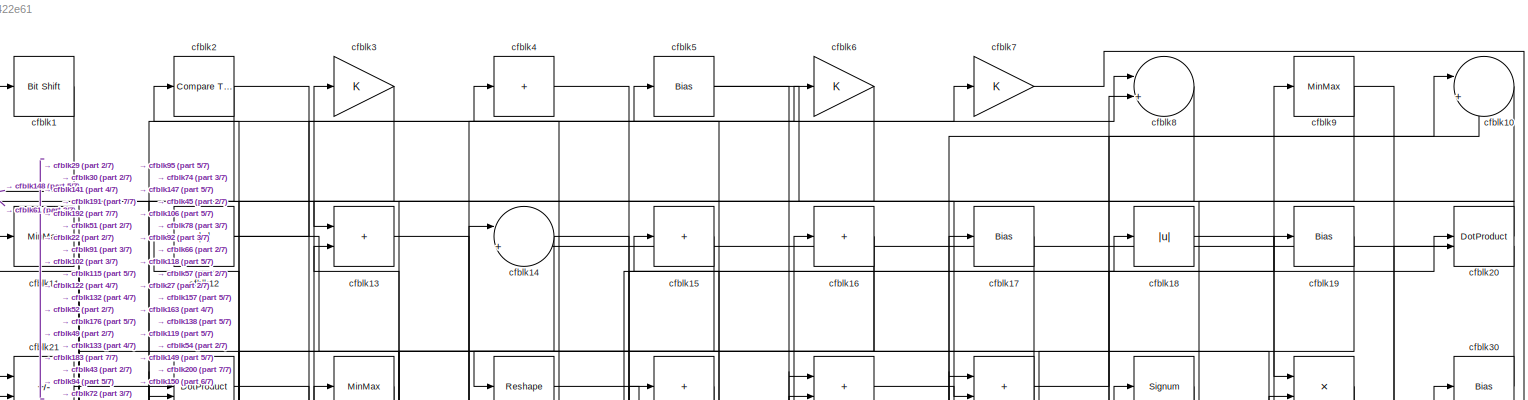
[diagram: root canvas - part 1/7, full width, top band]
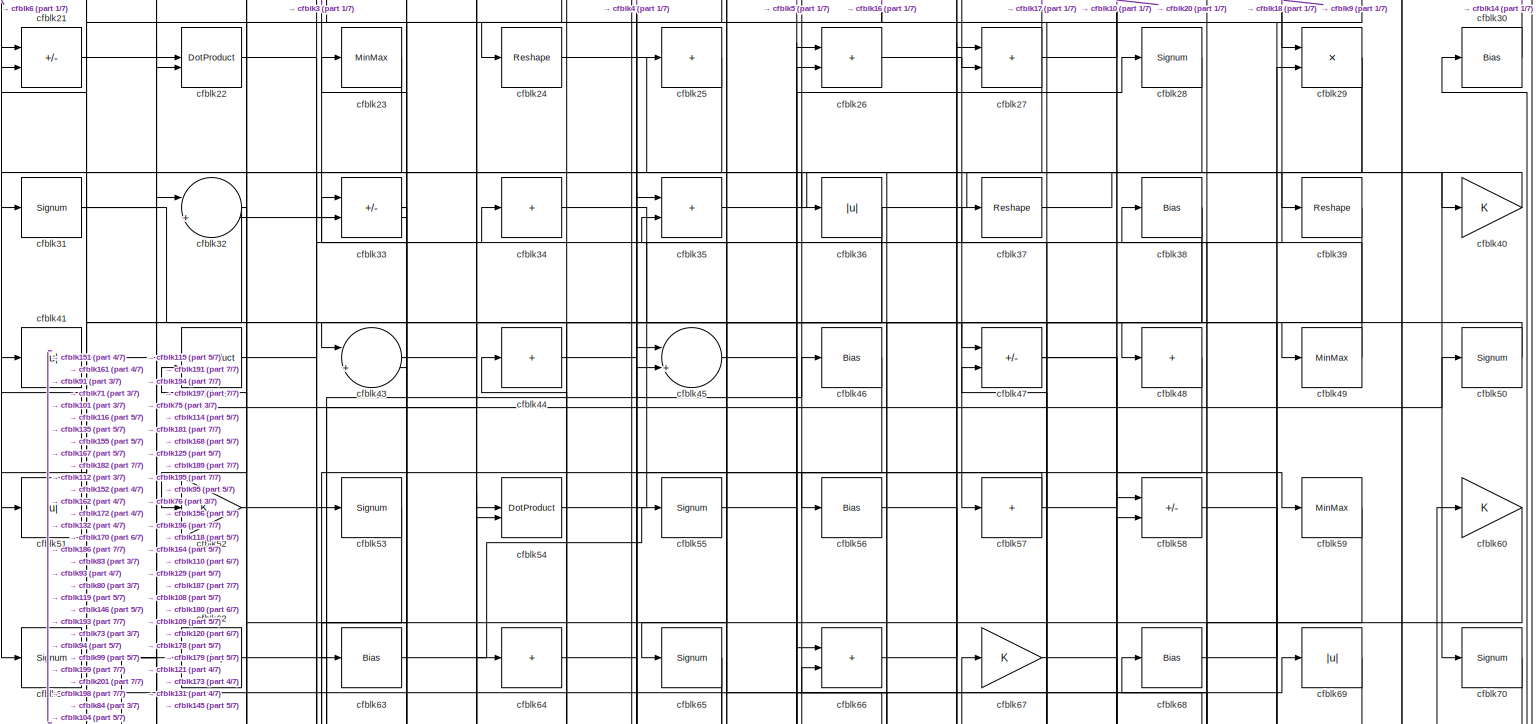
[diagram: root canvas - part 2/7, full width, top band]
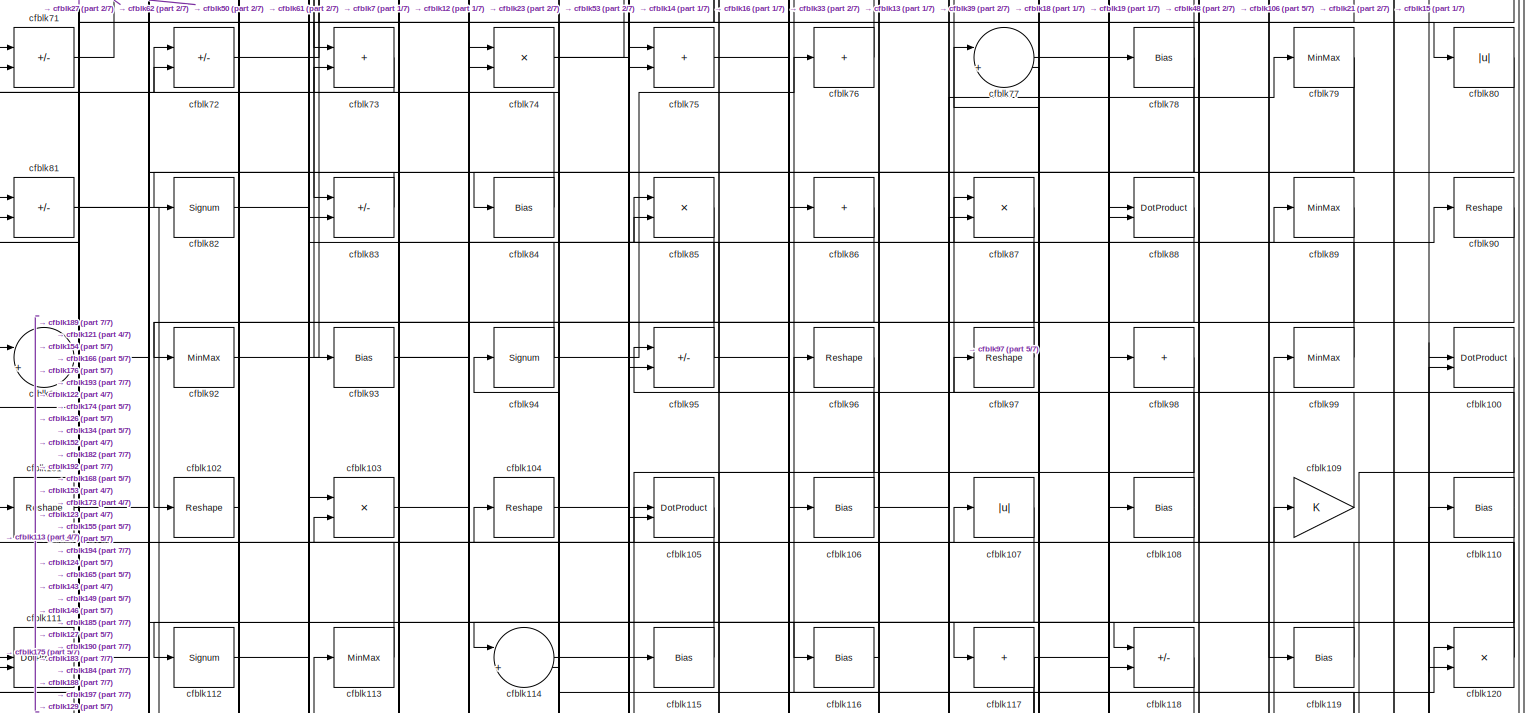
[diagram: root canvas - part 3/7, full width, middle band]
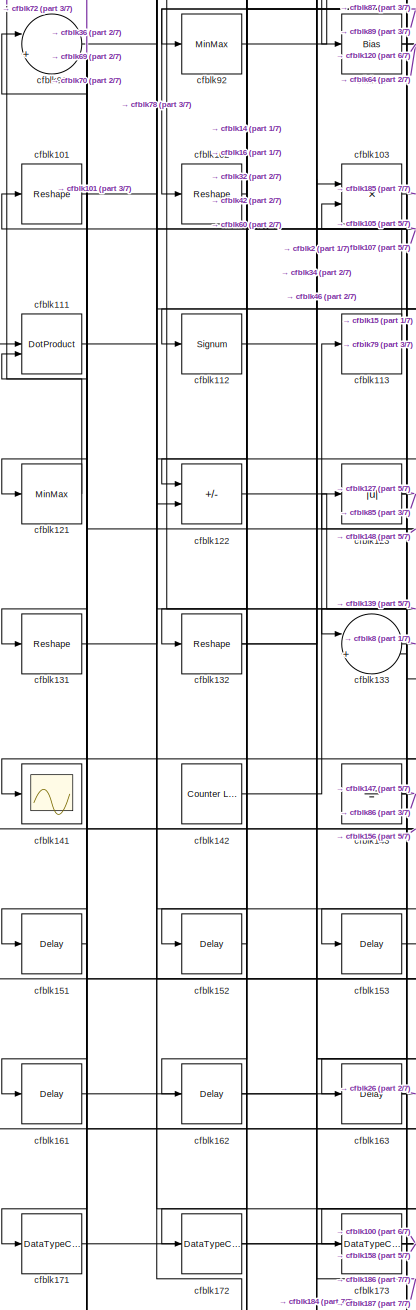
[diagram: root canvas - part 4/7, middle left region]
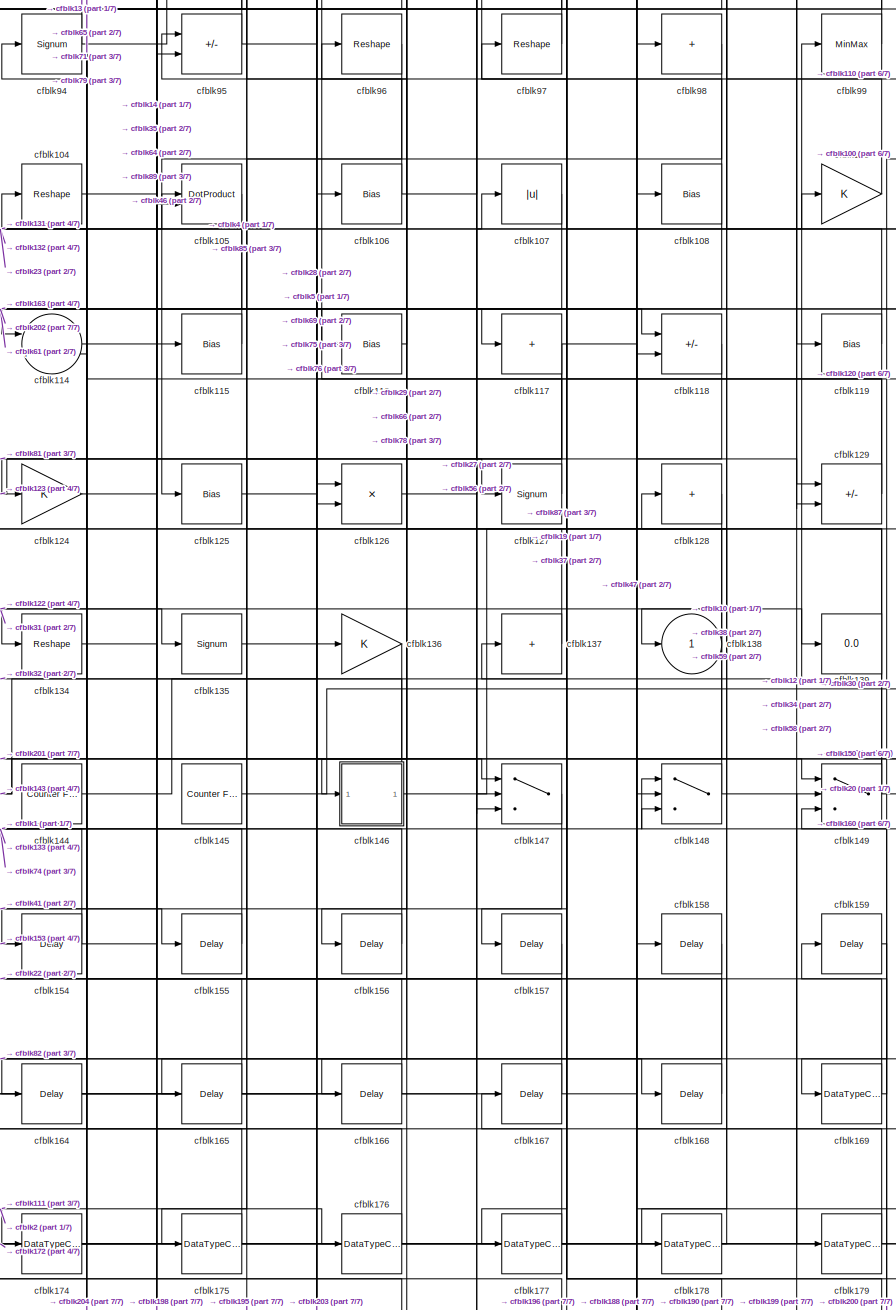
[diagram: root canvas - part 5/7, central region]
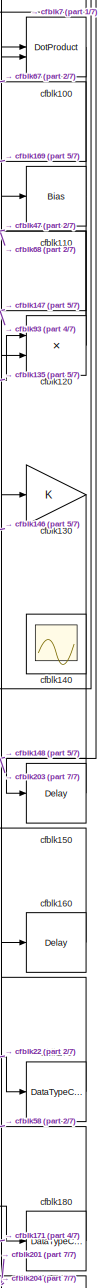
[diagram: root canvas - part 6/7, middle right region]
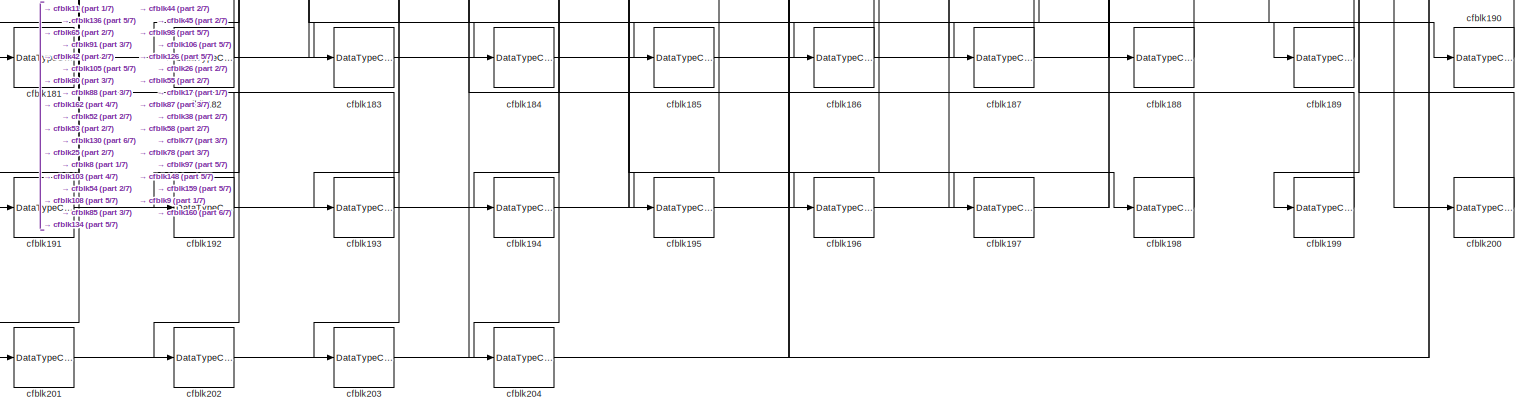
[diagram: root canvas - part 7/7, full width, bottom band]
MODEL slx_abb1a9422e61
KIND model
CONFIG AbsTol = auto
CONFIG EnableMultiTasking = off
CONFIG FixedStep = auto
CONFIG MaxStep = auto
CONFIG MinStep = auto
CONFIG RelTol = 1e-3
CONFIG SampleTimeConstraint = Unconstrained
CONFIG SolverName = VariableStepAuto
CONFIG StartTime = 0.0
CONFIG StopTime = 10.0
BLOCK [Reference] cfblk1  REF=hdlsllib/Logic and Bit
Operations/Bit Shift
  SourceBlock = hdlsllib/Logic and Bit\nOperations/Bit Shift
  SourceType = Bit Shift
BLOCK [Sum] cfblk10
  Inputs = |++
BLOCK [DotProduct] cfblk100
  OutDataTypeStr = Inherit: Inherit via internal rule
BLOCK [Reshape] cfblk101
BLOCK [Reshape] cfblk102
BLOCK [Product] cfblk103
  Inputs = */
  RndMeth = Zero
  SaturateOnIntegerOverflow = on
BLOCK [Reshape] cfblk104
BLOCK [DotProduct] cfblk105
  OutDataTypeStr = Inherit: Inherit via internal rule
BLOCK [Bias] cfblk106
  Bias = 0.0
  SaturateOnIntegerOverflow = off
BLOCK [Abs] cfblk107
  SaturateOnIntegerOverflow = off
BLOCK [Bias] cfblk108
  Bias = 0.0
  SaturateOnIntegerOverflow = off
BLOCK [Gain] cfblk109
BLOCK [MinMax] cfblk11
BLOCK [Bias] cfblk110
  Bias = 0.0
  SaturateOnIntegerOverflow = off
BLOCK [DotProduct] cfblk111
  OutDataTypeStr = Inherit: Inherit via internal rule
BLOCK [Signum] cfblk112
BLOCK [MinMax] cfblk113
BLOCK [Sum] cfblk114
  Inputs = |++
BLOCK [Bias] cfblk115
  Bias = 0.0
  SaturateOnIntegerOverflow = off
BLOCK [Bias] cfblk116
  Bias = 0.0
  SaturateOnIntegerOverflow = off
BLOCK [Sum] cfblk117
  IconShape = rectangular
  Inputs = +
BLOCK [Sum] cfblk118
  IconShape = rectangular
  Inputs = +-
BLOCK [Bias] cfblk119
  Bias = 0.0
  SaturateOnIntegerOverflow = off
BLOCK [Abs] cfblk12
  SaturateOnIntegerOverflow = off
BLOCK [Product] cfblk120
  Inputs = */
  RndMeth = Zero
  SaturateOnIntegerOverflow = on
BLOCK [MinMax] cfblk121
BLOCK [Sum] cfblk122
  IconShape = rectangular
  Inputs = +-
BLOCK [Abs] cfblk123
  SaturateOnIntegerOverflow = off
BLOCK [Gain] cfblk124
BLOCK [Bias] cfblk125
  Bias = 0.0
  SaturateOnIntegerOverflow = off
BLOCK [Product] cfblk126
  Inputs = */
  RndMeth = Zero
  SaturateOnIntegerOverflow = on
BLOCK [Signum] cfblk127
BLOCK [Sum] cfblk128
  IconShape = rectangular
  Inputs = +
BLOCK [Sum] cfblk129
  IconShape = rectangular
  Inputs = +-
BLOCK [Sum] cfblk13
  IconShape = rectangular
BLOCK [Gain] cfblk130
BLOCK [Reshape] cfblk131
BLOCK [Reshape] cfblk132
BLOCK [Sum] cfblk133
  Inputs = |++
BLOCK [Reshape] cfblk134
BLOCK [Signum] cfblk135
BLOCK [Gain] cfblk136
BLOCK [Sum] cfblk137
  IconShape = rectangular
  Inputs = +
BLOCK [Outport] cfblk138
  VectorParamsAs1DForOutWhenUnconnected = off
BLOCK [Display] cfblk139
  Decimation = 1
BLOCK [Sum] cfblk14
  Inputs = |++
BLOCK [Scope] cfblk140
  Floating = on
  NumInputPorts = 1
  ScopeSpecificationString = Simulink.scopes.TimeScopeBlockCfg('CurrentConfiguration', extmgr.ConfigurationSet(extmgr.Configuration('Core','General UI',true,'FigureColor',[0.156862745098039 0.156862745098039 0.156862745098039]),extmgr.Configuration('Core','Source UI',true),extmgr.Configuration('Sources','WiredSimulink',true,'DataLoggingVariableName','ScopeData1','DataLoggingSaveFormat','StructureWithTime','DataLoggingLimitDat...<+2713ch>
BLOCK [Scope] cfblk141
  Floating = off
  NumInputPorts = 1
  ScopeSpecificationString = Simulink.scopes.TimeScopeBlockCfg('CurrentConfiguration', extmgr.ConfigurationSet(extmgr.Configuration('Core','General UI',true),extmgr.Configuration('Core','Source UI',true),extmgr.Configuration('Sources','WiredSimulink',true,'DataLoggingVariableName','ScopeData2','DataLoggingSaveFormat','Array','DataLoggingLimitDataPoints',true,'DataLoggingDecimation','1'),extmgr.Configuration('Visuals','Time Do...<+868ch>
BLOCK [Reference] cfblk142  REF=hdlsllib/Sources/Counter
Limited
  SourceBlock = hdlsllib/Sources/Counter\nLimited
  SourceType = Counter Limited
BLOCK [Ground] cfblk143
BLOCK [Reference] cfblk144  REF=hdlsllib/Sources/Counter
Free-Running
  SourceBlock = hdlsllib/Sources/Counter\nFree-Running
  SourceType = Counter Free-Running
BLOCK [Reference] cfblk145  REF=hdlsllib/Sources/Counter
Free-Running
  SourceBlock = hdlsllib/Sources/Counter\nFree-Running
  SourceType = Counter Free-Running
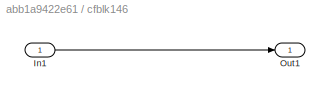
BLOCK [SubSystem] cfblk146
  LibrarySourceBlock = hdlsllib/Ports &\nSubsystems/Subsystem
BLOCK [Inport] cfblk146/In1
BLOCK [Outport] cfblk146/Out1
BLOCK [Switch] cfblk147
  InputSameDT = off
  SaturateOnIntegerOverflow = off
BLOCK [Switch] cfblk148
  InputSameDT = off
  SaturateOnIntegerOverflow = off
BLOCK [Switch] cfblk149
  InputSameDT = off
  SaturateOnIntegerOverflow = off
BLOCK [Sum] cfblk15
  IconShape = rectangular
  Inputs = +
BLOCK [Delay] cfblk150
  InputPortMap = u0
  SampleTime = 1
BLOCK [Delay] cfblk151
  InputPortMap = u0
  SampleTime = 1
BLOCK [Delay] cfblk152
  InputPortMap = u0
  SampleTime = 1
BLOCK [Delay] cfblk153
  InputPortMap = u0
  SampleTime = 1
BLOCK [Delay] cfblk154
  InputPortMap = u0
  SampleTime = 1
BLOCK [Delay] cfblk155
  InputPortMap = u0
  SampleTime = 1
BLOCK [Delay] cfblk156
  InputPortMap = u0
  SampleTime = 1
BLOCK [Delay] cfblk157
  InputPortMap = u0
  SampleTime = 1
BLOCK [Delay] cfblk158
  InputPortMap = u0
  SampleTime = 1
BLOCK [Delay] cfblk159
  InputPortMap = u0
  SampleTime = 1
BLOCK [Sum] cfblk16
  IconShape = rectangular
  Inputs = +
BLOCK [Delay] cfblk160
  InputPortMap = u0
  SampleTime = 1
BLOCK [Delay] cfblk161
  InputPortMap = u0
  SampleTime = 1
BLOCK [Delay] cfblk162
  InputPortMap = u0
  SampleTime = 1
BLOCK [Delay] cfblk163
  InputPortMap = u0
  SampleTime = 1
BLOCK [Delay] cfblk164
  InputPortMap = u0
  SampleTime = 1
BLOCK [Delay] cfblk165
  InputPortMap = u0
  SampleTime = 1
BLOCK [Delay] cfblk166
  InputPortMap = u0
  SampleTime = 1
BLOCK [Delay] cfblk167
  InputPortMap = u0
  SampleTime = 1
BLOCK [Delay] cfblk168
  InputPortMap = u0
  SampleTime = 1
BLOCK [DataTypeConversion] cfblk169
  RndMeth = Floor
  SaturateOnIntegerOverflow = off
BLOCK [Bias] cfblk17
  Bias = 0.0
  SaturateOnIntegerOverflow = off
BLOCK [DataTypeConversion] cfblk170
  OutDataTypeStr = uint8
  RndMeth = Floor
  SaturateOnIntegerOverflow = off
BLOCK [DataTypeConversion] cfblk171
  OutDataTypeStr = uint8
  RndMeth = Floor
  SaturateOnIntegerOverflow = off
BLOCK [DataTypeConversion] cfblk172
  OutDataTypeStr = uint8
  RndMeth = Floor
  SaturateOnIntegerOverflow = off
BLOCK [DataTypeConversion] cfblk173
  OutDataTypeStr = uint8
  RndMeth = Floor
  SaturateOnIntegerOverflow = off
BLOCK [DataTypeConversion] cfblk174
  RndMeth = Floor
  SaturateOnIntegerOverflow = off
BLOCK [DataTypeConversion] cfblk175
  OutDataTypeStr = uint8
  RndMeth = Floor
  SaturateOnIntegerOverflow = off
BLOCK [DataTypeConversion] cfblk176
  OutDataTypeStr = uint8
  RndMeth = Floor
  SaturateOnIntegerOverflow = off
BLOCK [DataTypeConversion] cfblk177
  RndMeth = Floor
  SaturateOnIntegerOverflow = off
BLOCK [DataTypeConversion] cfblk178
  OutDataTypeStr = uint8
  RndMeth = Floor
  SaturateOnIntegerOverflow = off
BLOCK [DataTypeConversion] cfblk179
  OutDataTypeStr = uint8
  RndMeth = Floor
  SaturateOnIntegerOverflow = off
BLOCK [Abs] cfblk18
  SaturateOnIntegerOverflow = off
BLOCK [DataTypeConversion] cfblk180
  OutDataTypeStr = uint8
  RndMeth = Floor
  SaturateOnIntegerOverflow = off
BLOCK [DataTypeConversion] cfblk181
  OutDataTypeStr = uint8
  RndMeth = Floor
  SaturateOnIntegerOverflow = off
BLOCK [DataTypeConversion] cfblk182
  RndMeth = Floor
  SaturateOnIntegerOverflow = off
BLOCK [DataTypeConversion] cfblk183
  OutDataTypeStr = uint8
  RndMeth = Floor
  SaturateOnIntegerOverflow = off
BLOCK [DataTypeConversion] cfblk184
  OutDataTypeStr = uint8
  RndMeth = Floor
  SaturateOnIntegerOverflow = off
BLOCK [DataTypeConversion] cfblk185
  OutDataTypeStr = uint8
  RndMeth = Floor
  SaturateOnIntegerOverflow = off
BLOCK [DataTypeConversion] cfblk186
  OutDataTypeStr = uint8
  RndMeth = Floor
  SaturateOnIntegerOverflow = off
BLOCK [DataTypeConversion] cfblk187
  OutDataTypeStr = uint8
  RndMeth = Floor
  SaturateOnIntegerOverflow = off
BLOCK [DataTypeConversion] cfblk188
  OutDataTypeStr = uint8
  RndMeth = Floor
  SaturateOnIntegerOverflow = off
BLOCK [DataTypeConversion] cfblk189
  OutDataTypeStr = uint8
  RndMeth = Floor
  SaturateOnIntegerOverflow = off
BLOCK [Bias] cfblk19
  Bias = 0.0
  SaturateOnIntegerOverflow = off
BLOCK [DataTypeConversion] cfblk190
  OutDataTypeStr = uint8
  RndMeth = Floor
  SaturateOnIntegerOverflow = off
BLOCK [DataTypeConversion] cfblk191
  RndMeth = Floor
  SaturateOnIntegerOverflow = off
BLOCK [DataTypeConversion] cfblk192
  OutDataTypeStr = uint8
  RndMeth = Floor
  SaturateOnIntegerOverflow = off
BLOCK [DataTypeConversion] cfblk193
  OutDataTypeStr = uint8
  RndMeth = Floor
  SaturateOnIntegerOverflow = off
BLOCK [DataTypeConversion] cfblk194
  OutDataTypeStr = uint8
  RndMeth = Floor
  SaturateOnIntegerOverflow = off
BLOCK [DataTypeConversion] cfblk195
  OutDataTypeStr = uint8
  RndMeth = Floor
  SaturateOnIntegerOverflow = off
BLOCK [DataTypeConversion] cfblk196
  OutDataTypeStr = uint8
  RndMeth = Floor
  SaturateOnIntegerOverflow = off
BLOCK [DataTypeConversion] cfblk197
  OutDataTypeStr = uint8
  RndMeth = Floor
  SaturateOnIntegerOverflow = off
BLOCK [DataTypeConversion] cfblk198
  OutDataTypeStr = uint8
  RndMeth = Floor
  SaturateOnIntegerOverflow = off
BLOCK [DataTypeConversion] cfblk199
  OutDataTypeStr = uint8
  RndMeth = Floor
  SaturateOnIntegerOverflow = off
BLOCK [Reference] cfblk2  REF=hdlsllib/Logic and Bit
Operations/Compare
To Constant
  SourceBlock = hdlsllib/Logic and Bit\nOperations/Compare\nTo Constant
  SourceType = Compare To Constant
BLOCK [DotProduct] cfblk20
  OutDataTypeStr = Inherit: Inherit via internal rule
BLOCK [DataTypeConversion] cfblk200
  OutDataTypeStr = uint8
  RndMeth = Floor
  SaturateOnIntegerOverflow = off
BLOCK [DataTypeConversion] cfblk201
  RndMeth = Floor
  SaturateOnIntegerOverflow = off
BLOCK [DataTypeConversion] cfblk202
  OutDataTypeStr = uint8
  RndMeth = Floor
  SaturateOnIntegerOverflow = off
BLOCK [DataTypeConversion] cfblk203
  OutDataTypeStr = uint8
  RndMeth = Floor
  SaturateOnIntegerOverflow = off
BLOCK [DataTypeConversion] cfblk204
  OutDataTypeStr = uint8
  RndMeth = Floor
  SaturateOnIntegerOverflow = off
BLOCK [Sum] cfblk21
  IconShape = rectangular
  Inputs = +-
BLOCK [DotProduct] cfblk22
  OutDataTypeStr = Inherit: Inherit via internal rule
BLOCK [MinMax] cfblk23
BLOCK [Reshape] cfblk24
BLOCK [Sum] cfblk25
  IconShape = rectangular
  Inputs = +
BLOCK [Sum] cfblk26
  IconShape = rectangular
BLOCK [Sum] cfblk27
  IconShape = rectangular
BLOCK [Signum] cfblk28
BLOCK [Product] cfblk29
  Inputs = */
  RndMeth = Zero
  SaturateOnIntegerOverflow = on
BLOCK [Gain] cfblk3
BLOCK [Bias] cfblk30
  Bias = 0.0
  SaturateOnIntegerOverflow = off
BLOCK [Signum] cfblk31
BLOCK [Sum] cfblk32
  Inputs = |++
BLOCK [Sum] cfblk33
  IconShape = rectangular
  Inputs = +-
BLOCK [Sum] cfblk34
  IconShape = rectangular
  Inputs = +
BLOCK [Sum] cfblk35
  IconShape = rectangular
BLOCK [Abs] cfblk36
  SaturateOnIntegerOverflow = off
BLOCK [Reshape] cfblk37
BLOCK [Bias] cfblk38
  Bias = 0.0
  SaturateOnIntegerOverflow = off
BLOCK [Reshape] cfblk39
BLOCK [Sum] cfblk4
  IconShape = rectangular
  Inputs = +
BLOCK [Gain] cfblk40
BLOCK [Abs] cfblk41
  SaturateOnIntegerOverflow = off
BLOCK [DotProduct] cfblk42
  OutDataTypeStr = Inherit: Inherit via internal rule
BLOCK [Sum] cfblk43
  Inputs = |++
BLOCK [Sum] cfblk44
  IconShape = rectangular
  Inputs = +
BLOCK [Sum] cfblk45
  Inputs = |++
BLOCK [Bias] cfblk46
  Bias = 0.0
  SaturateOnIntegerOverflow = off
BLOCK [Sum] cfblk47
  IconShape = rectangular
  Inputs = +-
BLOCK [Sum] cfblk48
  IconShape = rectangular
  Inputs = +
BLOCK [MinMax] cfblk49
BLOCK [Bias] cfblk5
  Bias = 0.0
  SaturateOnIntegerOverflow = off
BLOCK [Signum] cfblk50
BLOCK [Abs] cfblk51
  SaturateOnIntegerOverflow = off
BLOCK [Gain] cfblk52
BLOCK [Signum] cfblk53
BLOCK [DotProduct] cfblk54
  OutDataTypeStr = Inherit: Inherit via internal rule
BLOCK [Signum] cfblk55
BLOCK [Bias] cfblk56
  Bias = 0.0
  SaturateOnIntegerOverflow = off
BLOCK [Sum] cfblk57
  IconShape = rectangular
  Inputs = +
BLOCK [Sum] cfblk58
  IconShape = rectangular
  Inputs = +-
BLOCK [MinMax] cfblk59
BLOCK [Gain] cfblk6
BLOCK [Gain] cfblk60
BLOCK [Signum] cfblk61
BLOCK [Reshape] cfblk62
BLOCK [Bias] cfblk63
  Bias = 0.0
  SaturateOnIntegerOverflow = off
BLOCK [Sum] cfblk64
  IconShape = rectangular
  Inputs = +
BLOCK [Signum] cfblk65
BLOCK [Sum] cfblk66
  IconShape = rectangular
BLOCK [Gain] cfblk67
BLOCK [Bias] cfblk68
  Bias = 0.0
  SaturateOnIntegerOverflow = off
BLOCK [Abs] cfblk69
  SaturateOnIntegerOverflow = off
BLOCK [Gain] cfblk7
BLOCK [Signum] cfblk70
BLOCK [Sum] cfblk71
  IconShape = rectangular
  Inputs = +-
BLOCK [Sum] cfblk72
  IconShape = rectangular
  Inputs = +-
BLOCK [Sum] cfblk73
  IconShape = rectangular
BLOCK [Product] cfblk74
  Inputs = */
  RndMeth = Zero
  SaturateOnIntegerOverflow = on
BLOCK [Sum] cfblk75
  IconShape = rectangular
BLOCK [Sum] cfblk76
  IconShape = rectangular
  Inputs = +
BLOCK [Sum] cfblk77
  Inputs = |++
BLOCK [Bias] cfblk78
  Bias = 0.0
  SaturateOnIntegerOverflow = off
BLOCK [MinMax] cfblk79
BLOCK [Sum] cfblk8
  Inputs = |++
BLOCK [Abs] cfblk80
  SaturateOnIntegerOverflow = off
BLOCK [Sum] cfblk81
  IconShape = rectangular
  Inputs = +-
BLOCK [Signum] cfblk82
BLOCK [Sum] cfblk83
  IconShape = rectangular
  Inputs = +-
BLOCK [Bias] cfblk84
  Bias = 0.0
  SaturateOnIntegerOverflow = off
BLOCK [Product] cfblk85
  Inputs = */
  RndMeth = Zero
  SaturateOnIntegerOverflow = on
BLOCK [Sum] cfblk86
  IconShape = rectangular
  Inputs = +
BLOCK [Product] cfblk87
  Inputs = */
  RndMeth = Zero
  SaturateOnIntegerOverflow = on
BLOCK [DotProduct] cfblk88
  OutDataTypeStr = Inherit: Inherit via internal rule
BLOCK [MinMax] cfblk89
BLOCK [MinMax] cfblk9
BLOCK [Reshape] cfblk90
BLOCK [Sum] cfblk91
  Inputs = |++
BLOCK [MinMax] cfblk92
BLOCK [Bias] cfblk93
  Bias = 0.0
  SaturateOnIntegerOverflow = off
BLOCK [Signum] cfblk94
BLOCK [Sum] cfblk95
  IconShape = rectangular
  Inputs = +-
BLOCK [Reshape] cfblk96
BLOCK [Reshape] cfblk97
BLOCK [Sum] cfblk98
  IconShape = rectangular
  Inputs = +
BLOCK [MinMax] cfblk99
LINE cfblk100:1 -> cfblk169:1
LINE cfblk101:1 -> cfblk50:1
LINE cfblk102:1 -> cfblk12:1
LINE cfblk103:1 -> cfblk185:1
LINE cfblk104:1 -> cfblk35:1
LINE cfblk105:1 -> cfblk202:1
NET cfblk106:1 -> cfblk5:1, cfblk79:1
LINE cfblk107:1 -> cfblk163:1
NET cfblk108:1 -> cfblk204:1, cfblk85:2
LINE cfblk109:1 -> cfblk38:1
LINE cfblk10:1 -> cfblk138:1
NET cfblk110:1 -> cfblk147:2, cfblk67:1
LINE cfblk111:1 -> cfblk174:1
LINE cfblk112:1 -> cfblk90:1
LINE cfblk113:1 -> cfblk101:1
LINE cfblk114:1 -> cfblk117:1
LINE cfblk115:1 -> cfblk2:1
LINE cfblk116:1 -> cfblk66:2
NET cfblk117:1 -> cfblk129:2, cfblk165:1, cfblk166:1
LINE cfblk118:1 -> cfblk154:1
LINE cfblk119:1 -> cfblk23:1
LINE cfblk11:1 -> cfblk191:1
NET cfblk120:1 -> cfblk47:2, cfblk68:1
LINE cfblk121:1 -> cfblk72:1
LINE cfblk122:1 -> cfblk139:1
NET cfblk123:1 -> cfblk127:1, cfblk85:1
LINE cfblk124:1 -> cfblk89:1
LINE cfblk125:1 -> cfblk28:1
LINE cfblk126:1 -> cfblk109:1
LINE cfblk127:1 -> cfblk71:1
LINE cfblk128:1 -> cfblk177:1
NET cfblk129:1 -> cfblk37:1, cfblk76:1
NET cfblk12:1 -> cfblk119:1, cfblk6:1
LINE cfblk130:1 -> cfblk203:1
LINE cfblk131:1 -> cfblk107:1
NET cfblk132:1 -> cfblk105:1, cfblk34:1
LINE cfblk133:1 -> cfblk8:1
LINE cfblk134:1 -> cfblk198:1
LINE cfblk135:1 -> cfblk120:1
LINE cfblk136:1 -> cfblk201:1
LINE cfblk137:1 -> cfblk96:1
LINE cfblk13:1 -> cfblk74:2
LINE cfblk142:1 -> cfblk113:1
NET cfblk143:1 -> cfblk147:1, cfblk86:1
LINE cfblk144:1 -> cfblk99:1
LINE cfblk145:1 -> cfblk30:1
LINE cfblk146/In1:1 -> cfblk146/Out1:1
NET cfblk146:1 -> cfblk110:1, cfblk32:2
LINE cfblk147:1 -> cfblk164:1
NET cfblk148:1 -> cfblk123:1, cfblk190:1
NET cfblk149:1 -> cfblk20:2, cfblk81:1, cfblk95:1
NET cfblk14:1 -> cfblk132:1, cfblk147:3
LINE cfblk150:1 -> cfblk148:2
LINE cfblk151:1 -> cfblk171:1
LINE cfblk152:1 -> cfblk42:2
LINE cfblk153:1 -> cfblk105:2
LINE cfblk154:1 -> cfblk81:2
LINE cfblk155:1 -> cfblk74:1
LINE cfblk156:1 -> cfblk133:2
LINE cfblk157:1 -> cfblk1:1
LINE cfblk158:1 -> cfblk175:1
LINE cfblk159:1 -> cfblk199:1
LINE cfblk15:1 -> cfblk133:1
LINE cfblk160:1 -> cfblk148:3
LINE cfblk161:1 -> cfblk26:2
LINE cfblk162:1 -> cfblk184:1
LINE cfblk163:1 -> cfblk8:2
LINE cfblk164:1 -> cfblk27:1
LINE cfblk165:1 -> cfblk75:1
LINE cfblk166:1 -> cfblk71:2
LINE cfblk167:1 -> cfblk22:1
LINE cfblk168:1 -> cfblk35:2
NET cfblk169:1 -> cfblk149:3, cfblk94:1
NET cfblk16:1 -> cfblk122:1, cfblk51:1
LINE cfblk170:1 -> cfblk100:1
LINE cfblk171:1 -> cfblk100:2
LINE cfblk172:1 -> cfblk158:1
LINE cfblk173:1 -> cfblk60:1
NET cfblk174:1 -> cfblk104:1, cfblk149:2, cfblk95:2
LINE cfblk175:1 -> cfblk111:1
LINE cfblk176:1 -> cfblk111:2
NET cfblk177:1 -> cfblk137:1, cfblk167:1
LINE cfblk178:1 -> cfblk128:1
LINE cfblk179:1 -> cfblk114:2
LINE cfblk17:1 -> cfblk43:2
LINE cfblk180:1 -> cfblk58:1
LINE cfblk181:1 -> cfblk58:2
NET cfblk182:1 -> cfblk42:1, cfblk53:1
LINE cfblk183:1 -> cfblk88:1
LINE cfblk184:1 -> cfblk88:2
LINE cfblk185:1 -> cfblk87:2
LINE cfblk186:1 -> cfblk103:1
LINE cfblk187:1 -> cfblk103:2
LINE cfblk188:1 -> cfblk97:1
LINE cfblk189:1 -> cfblk77:1
LINE cfblk18:1 -> cfblk29:1
LINE cfblk190:1 -> cfblk77:2
NET cfblk191:1 -> cfblk17:1, cfblk45:2
LINE cfblk192:1 -> cfblk11:1
LINE cfblk193:1 -> cfblk91:1
LINE cfblk194:1 -> cfblk25:1
LINE cfblk195:1 -> cfblk26:1
LINE cfblk196:1 -> cfblk98:1
LINE cfblk197:1 -> cfblk78:1
LINE cfblk198:1 -> cfblk44:1
LINE cfblk199:1 -> cfblk54:1
LINE cfblk19:1 -> cfblk157:1
LINE cfblk1:1 -> cfblk148:1
LINE cfblk200:1 -> cfblk159:1
NET cfblk201:1 -> cfblk106:1, cfblk160:1, cfblk54:2
LINE cfblk202:1 -> cfblk136:1
LINE cfblk203:1 -> cfblk126:1
LINE cfblk204:1 -> cfblk130:1
LINE cfblk20:1 -> cfblk13:1
LINE cfblk21:1 -> cfblk32:1
LINE cfblk22:1 -> cfblk170:1
LINE cfblk23:1 -> cfblk112:1
LINE cfblk24:1 -> cfblk36:1
LINE cfblk25:1 -> cfblk193:1
LINE cfblk26:1 -> cfblk27:2
NET cfblk27:1 -> cfblk10:2, cfblk24:1, cfblk91:2
LINE cfblk28:1 -> cfblk33:2
NET cfblk29:1 -> cfblk156:1, cfblk41:1
NET cfblk2:1 -> cfblk141:1, cfblk176:1
LINE cfblk30:1 -> cfblk14:2
NET cfblk31:1 -> cfblk135:1, cfblk48:1
NET cfblk32:1 -> cfblk161:1, cfblk162:1
NET cfblk33:1 -> cfblk63:1, cfblk73:1
LINE cfblk34:1 -> cfblk129:1
LINE cfblk35:1 -> cfblk40:1
NET cfblk36:1 -> cfblk151:1, cfblk39:1, cfblk65:1
LINE cfblk37:1 -> cfblk70:1
NET cfblk38:1 -> cfblk187:1, cfblk196:1
LINE cfblk39:1 -> cfblk84:1
LINE cfblk3:1 -> cfblk22:2
LINE cfblk40:1 -> cfblk31:1
LINE cfblk41:1 -> cfblk155:1
LINE cfblk42:1 -> cfblk47:1
LINE cfblk43:1 -> cfblk49:1
LINE cfblk44:1 -> cfblk197:1
LINE cfblk45:1 -> cfblk66:1
LINE cfblk46:1 -> cfblk93:1
NET cfblk47:1 -> cfblk108:1, cfblk59:1
LINE cfblk48:1 -> cfblk75:2
LINE cfblk49:1 -> cfblk3:1
LINE cfblk4:1 -> cfblk45:1
LINE cfblk50:1 -> cfblk43:1
LINE cfblk51:1 -> cfblk21:1
LINE cfblk52:1 -> cfblk186:1
LINE cfblk53:1 -> cfblk83:1
LINE cfblk54:1 -> cfblk9:1
LINE cfblk55:1 -> cfblk189:1
LINE cfblk56:1 -> cfblk118:1
NET cfblk57:1 -> cfblk20:1, cfblk56:1
LINE cfblk58:1 -> cfblk179:1
LINE cfblk59:1 -> cfblk178:1
NET cfblk5:1 -> cfblk118:2, cfblk57:1
LINE cfblk60:1 -> cfblk172:1
NET cfblk61:1 -> cfblk116:1, cfblk83:2
LINE cfblk62:1 -> cfblk80:1
LINE cfblk63:1 -> cfblk55:1
LINE cfblk64:1 -> cfblk115:1
NET cfblk65:1 -> cfblk114:1, cfblk181:1
LINE cfblk66:1 -> cfblk10:1
LINE cfblk67:1 -> cfblk180:1
LINE cfblk68:1 -> cfblk29:2
LINE cfblk69:1 -> cfblk121:1
LINE cfblk6:1 -> cfblk61:1
LINE cfblk70:1 -> cfblk131:1
LINE cfblk71:1 -> cfblk62:1
LINE cfblk72:1 -> cfblk14:1
LINE cfblk73:1 -> cfblk72:2
NET cfblk74:1 -> cfblk18:1, cfblk19:1
LINE cfblk75:1 -> cfblk149:1
LINE cfblk76:1 -> cfblk21:2
LINE cfblk77:1 -> cfblk188:1
NET cfblk78:1 -> cfblk122:2, cfblk146:1, cfblk15:1
NET cfblk79:1 -> cfblk124:1, cfblk153:1
LINE cfblk7:1 -> cfblk150:1
LINE cfblk80:1 -> cfblk192:1
NET cfblk81:1 -> cfblk126:2, cfblk134:1
LINE cfblk82:1 -> cfblk168:1
LINE cfblk83:1 -> cfblk82:1
LINE cfblk84:1 -> cfblk73:2
LINE cfblk85:1 -> cfblk194:1
LINE cfblk86:1 -> cfblk102:1
LINE cfblk87:1 -> cfblk173:1
LINE cfblk88:1 -> cfblk182:1
LINE cfblk89:1 -> cfblk152:1
LINE cfblk8:1 -> cfblk183:1
LINE cfblk90:1 -> cfblk92:1
LINE cfblk91:1 -> cfblk7:1
LINE cfblk92:1 -> cfblk16:1
NET cfblk93:1 -> cfblk120:2, cfblk64:1
NET cfblk94:1 -> cfblk13:2, cfblk46:1
NET cfblk95:1 -> cfblk4:1, cfblk69:1
LINE cfblk96:1 -> cfblk125:1
LINE cfblk97:1 -> cfblk87:1
LINE cfblk98:1 -> cfblk195:1
LINE cfblk99:1 -> cfblk33:1
NET cfblk9:1 -> cfblk200:1, cfblk52:1
note: NET lines group one-source signal fan-out (src -> all destinations, sorted); 1:1 wires keep LINE
